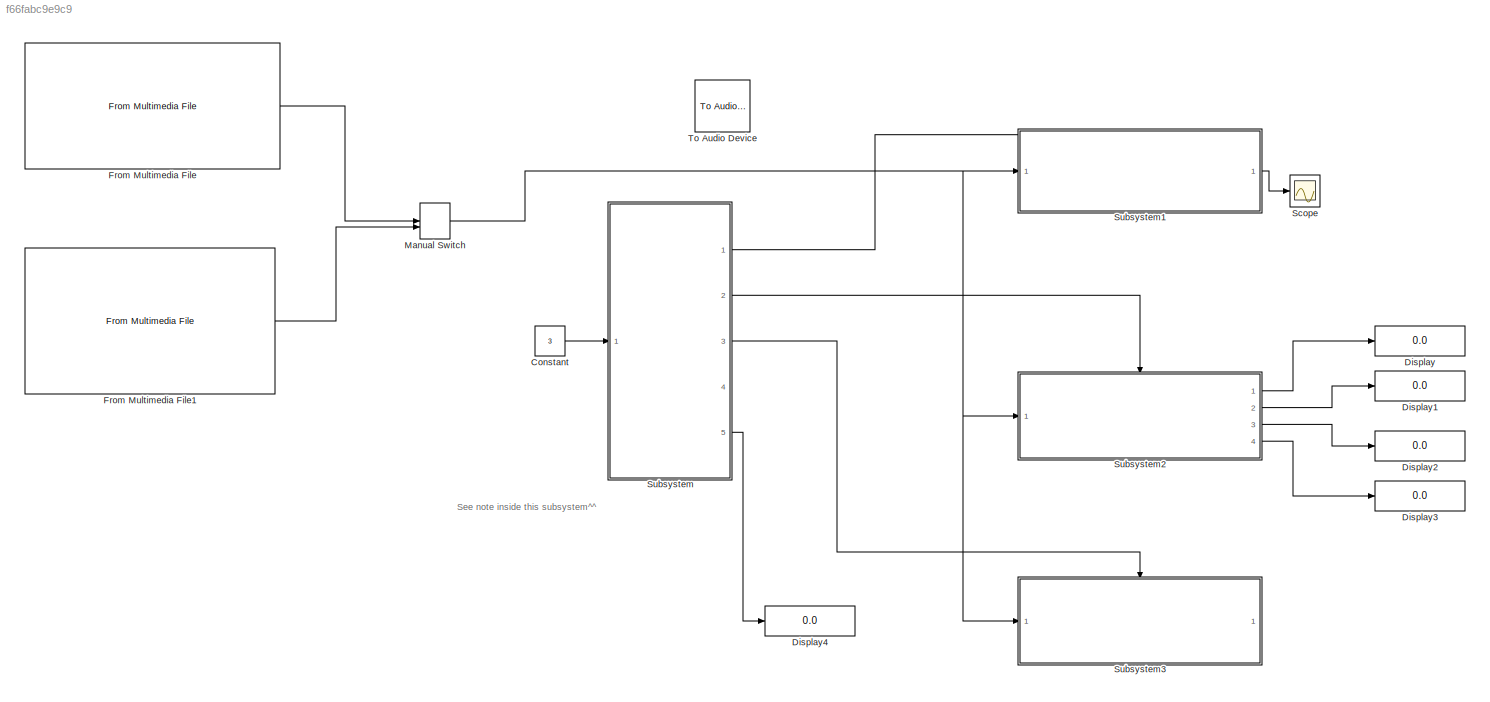
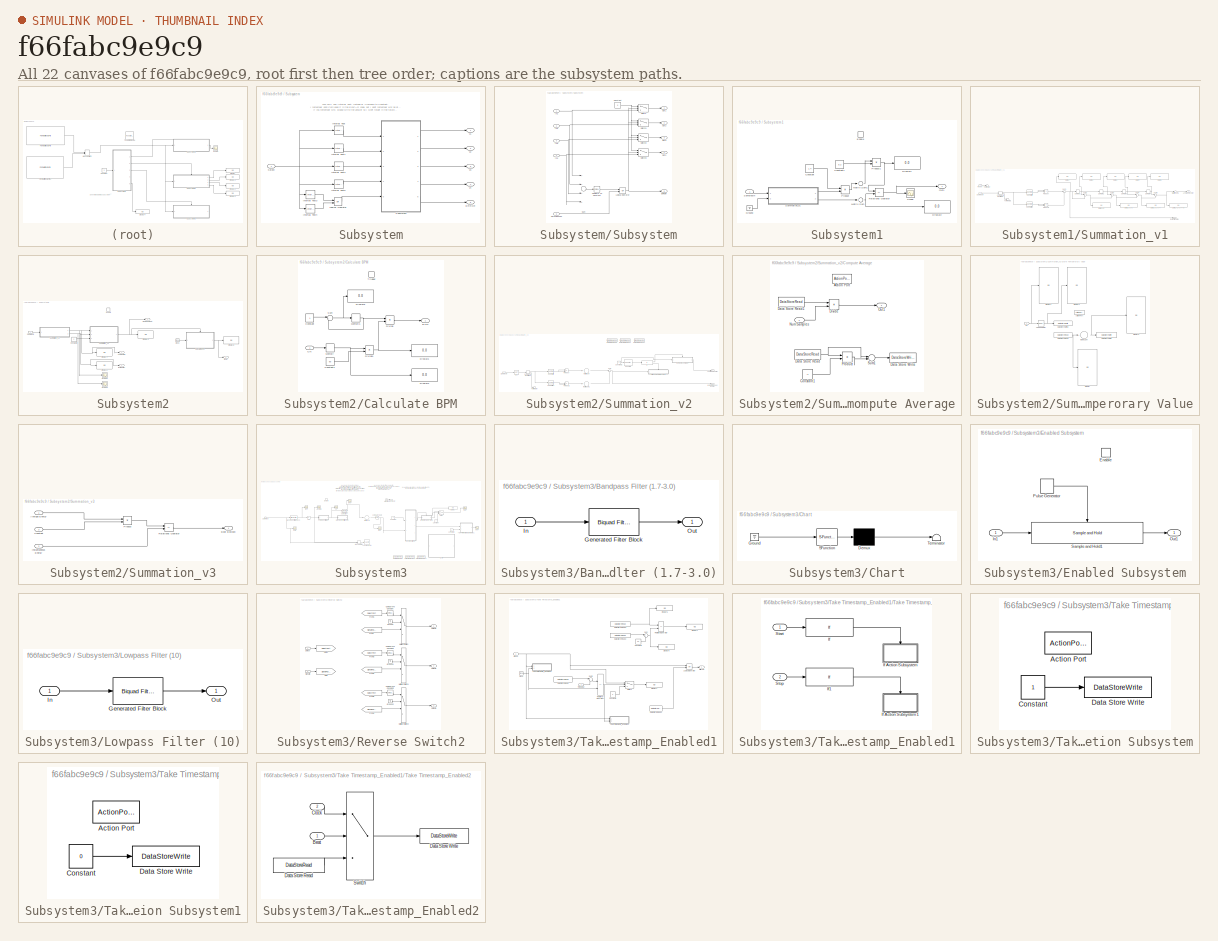
[diagram: thumbnail index - all 22 canvases of the model, root first then tree order]
MODEL slx_f66fabc9e9c9
KIND model
CONFIG AbsTol = auto
CONFIG FixedStep = auto
CONFIG MaxStep = auto
CONFIG MinStep = auto
CONFIG RelTol = 1e-3
CONFIG SampleTimeConstraint = Unconstrained
CONFIG Solver = ode45
CONFIG SolverMode = Auto
CONFIG SolverName = ode45
CONFIG StartTime = 0.0
CONFIG StopTime = inf
BLOCK [Constant] Constant
  Value = 3
BLOCK [Display] Display
  Decimation = 1
  Ports = [1]
BLOCK [Display] Display1
  Decimation = 1
  Ports = [1]
BLOCK [Display] Display2
  Decimation = 1
  Ports = [1]
BLOCK [Display] Display3
  Decimation = 1
  Ports = [1]
BLOCK [Display] Display4
  Decimation = 1
  Ports = [1]
BLOCK [Reference] From Multimedia File  REF=dspvision/From Multimedia File
  Ports = [0, 1]
  SourceBlock = dspvision/From Multimedia File
  SourceType = From Multimedia File
BLOCK [Reference] From Multimedia File1  REF=dspvision/From Multimedia File
  Ports = [0, 1]
  SourceBlock = dspvision/From Multimedia File
  SourceType = From Multimedia File
BLOCK [ManualSwitch] Manual Switch
  CurrentSetting = 0
BLOCK [Scope] Scope
  Ports = [1]
  ScopeSpecificationString = C++SS(StrPVP('Location','[809, 56, 1593, 851]'),StrPVP('Open','off'),MxPVP('AxesTitles',24,'struct(''axes1'',''%<SignalLabel>'')'),MxPVP('ScopeGraphics',28,'struct(''FigureColor'',''[0.5 0.5 0.5]'',''AxesColor'',''[0 0 0]'',''AxesTickColor'',''[1 1 1]'',''LineColors'',''[1 1 0;1 0 1;0 1 1;1 0 0;0 1 0;0 0 1]'',''LineStyles'',''-|-|-|-|-|-'',''LineWidths'',''[0.5 0.5 0.5 0.5 0.5 0.5]'',''MarkerStyle...<+224ch>  <repeated x3 — deduplicated; at blocks: Scope, BP1, Raw>
BLOCK [SubSystem] Subsystem
  Ports = [1, 5]
  RequestExecContextInheritance = off
  Variant = off
BLOCK [Outport] Subsystem/ERROR
  IconDisplay = Port number
  Port = 5
BLOCK [Reference] Subsystem/Interval Test  REF=simulink/Logic and Bit
Operations/Interval Test
  Ports = [1, 1]
  SourceBlock = simulink/Logic and Bit\nOperations/Interval Test
  SourceType = Interval Test
BLOCK [Reference] Subsystem/Interval Test1  REF=simulink/Logic and Bit
Operations/Interval Test
  Ports = [1, 1]
  SourceBlock = simulink/Logic and Bit\nOperations/Interval Test
  SourceType = Interval Test
BLOCK [Reference] Subsystem/Interval Test2  REF=simulink/Logic and Bit
Operations/Interval Test
  Ports = [1, 1]
  SourceBlock = simulink/Logic and Bit\nOperations/Interval Test
  SourceType = Interval Test
BLOCK [Reference] Subsystem/Interval Test3  REF=simulink/Logic and Bit
Operations/Interval Test
  Ports = [1, 1]
  SourceBlock = simulink/Logic and Bit\nOperations/Interval Test
  SourceType = Interval Test
BLOCK [Reference] Subsystem/Interval Test4  REF=simulink/Logic and Bit
Operations/Interval Test
  Ports = [1, 1]
  SourceBlock = simulink/Logic and Bit\nOperations/Interval Test
  SourceType = Interval Test
BLOCK [Reference] Subsystem/Interval Test5  REF=simulink/Logic and Bit
Operations/Interval Test
  Ports = [1, 1]
  SourceBlock = simulink/Logic and Bit\nOperations/Interval Test
  SourceType = Interval Test
BLOCK [Logic] Subsystem/Logical Operator
  AllPortsSameDT = off
  Operator = OR
  Ports = [2, 1]
BLOCK [Inport] Subsystem/Select
  IconDisplay = Port number
BLOCK [SubSystem] Subsystem/Subsystem
  Ports = [5, 5]
  RequestExecContextInheritance = off
  Variant = off
BLOCK [Reference] Subsystem/Subsystem/Compare To Constant  REF=simulink/Logic and Bit
Operations/Compare
To Constant
  Ports = [1, 1]
  SourceBlock = simulink/Logic and Bit\nOperations/Compare\nTo Constant
  SourceType = Compare To Constant
BLOCK [Constant] Subsystem/Subsystem/Constant
  Value = 0
BLOCK [Outport] Subsystem/Subsystem/ERROR
  IconDisplay = Port number
  Port = 5
BLOCK [Inport] Subsystem/Subsystem/In1
  IconDisplay = Port number
BLOCK [Inport] Subsystem/Subsystem/In2
  IconDisplay = Port number
  Port = 2
BLOCK [Inport] Subsystem/Subsystem/In3
  IconDisplay = Port number
  Port = 3
BLOCK [Inport] Subsystem/Subsystem/In4
  IconDisplay = Port number
  Port = 4
BLOCK [Logic] Subsystem/Subsystem/Logical Operator
  AllPortsSameDT = off
  Operator = OR
  OutDataTypeStr = boolean
  Ports = [2, 1]
BLOCK [Outport] Subsystem/Subsystem/Out1
  IconDisplay = Port number
BLOCK [Outport] Subsystem/Subsystem/Out2
  IconDisplay = Port number
  Port = 2
BLOCK [Outport] Subsystem/Subsystem/Out3
  IconDisplay = Port number
  Port = 3
BLOCK [Outport] Subsystem/Subsystem/Out4
  IconDisplay = Port number
  Port = 4
BLOCK [Inport] Subsystem/Subsystem/OutOfBounds
  IconDisplay = Port number
  Port = 5
BLOCK [Sum] Subsystem/Subsystem/Sum
  InputSameDT = off
  Inputs = ++++
  OutDataTypeStr = Inherit: Inherit via internal rule
  Ports = [4, 1]
  SaturateOnIntegerOverflow = off
BLOCK [Switch] Subsystem/Subsystem/Switch
  Criteria = u2 > Threshold
  InputSameDT = off
  SaturateOnIntegerOverflow = off
BLOCK [Switch] Subsystem/Subsystem/Switch1
  Criteria = u2 > Threshold
  InputSameDT = off
  SaturateOnIntegerOverflow = off
BLOCK [Switch] Subsystem/Subsystem/Switch2
  Criteria = u2 > Threshold
  InputSameDT = off
  SaturateOnIntegerOverflow = off
BLOCK [Switch] Subsystem/Subsystem/Switch3
  Criteria = u2 > Threshold
  InputSameDT = off
  SaturateOnIntegerOverflow = off
BLOCK [Outport] Subsystem/v1
  IconDisplay = Port number
BLOCK [Outport] Subsystem/v2
  IconDisplay = Port number
  Port = 2
BLOCK [Outport] Subsystem/v3
  IconDisplay = Port number
  Port = 3
BLOCK [Outport] Subsystem/v4
  IconDisplay = Port number
  Port = 4
BLOCK [SubSystem] Subsystem1
  Ports = [1, 1, 1]
  RequestExecContextInheritance = off
  Variant = off
BLOCK [Constant] Subsystem1/Constant
  Value = 1.4
BLOCK [Constant] Subsystem1/Constant1
  Value = 0.2
BLOCK [Display] Subsystem1/Display1
  Decimation = 1
  Ports = [1]
BLOCK [Display] Subsystem1/Display2
  Decimation = 1
  Ports = [1]
BLOCK [EnablePort] Subsystem1/Enable
  Ports = []
BLOCK [Ground] Subsystem1/Ground
BLOCK [Sum] Subsystem1/Matrix Sum
  InputSameDT = off
  Inputs = +
  OutDataTypeStr = Inherit: Inherit via internal rule
  Ports = [1, 1]
  SaturateOnIntegerOverflow = off
BLOCK [Sum] Subsystem1/Matrix Sum1
  InputSameDT = off
  Inputs = +
  OutDataTypeStr = Inherit: Inherit via internal rule
  Ports = [1, 1]
  SaturateOnIntegerOverflow = off
BLOCK [Outport] Subsystem1/Out1
  IconDisplay = Port number
BLOCK [Product] Subsystem1/Product
  InputSameDT = off
  OutDataTypeStr = Inherit: Inherit via internal rule
  Ports = [2, 1]
  RndMeth = Floor
  SaturateOnIntegerOverflow = off
BLOCK [Product] Subsystem1/Product1
  InputSameDT = off
  OutDataTypeStr = Inherit: Inherit via internal rule
  Ports = [2, 1]
  RndMeth = Floor
  SaturateOnIntegerOverflow = off
BLOCK [RelationalOperator] Subsystem1/Relational Operator
  InputSameDT = off
  Operator = <=
  OutDataTypeStr = boolean
  Ports = [2, 1]
BLOCK [Inport] Subsystem1/SamplesIn
  IconDisplay = Port number
BLOCK [Scope] Subsystem1/Scope
  Ports = [1]
  ScopeSpecificationString = C++SS(StrPVP('Location','[809, 56, 1593, 851]'),StrPVP('Open','off'),MxPVP('AxesTitles',24,'struct(''axes1'',''%<SignalLabel>'')'),MxPVP('ScopeGraphics',28,'struct(''FigureColor'',''[0.5 0.5 0.5]'',''AxesColor'',''[0 0 0]'',''AxesTickColor'',''[1 1 1]'',''LineColors'',''[1 1 0;1 0 1;0 1 1;1 0 0;0 1 0;0 0 1]'',''LineStyles'',''-|-|-|-|-|-'',''LineWidths'',''[0.5 0.5 0.5 0.5 0.5 0.5]'',''MarkerStyle...<+192ch>
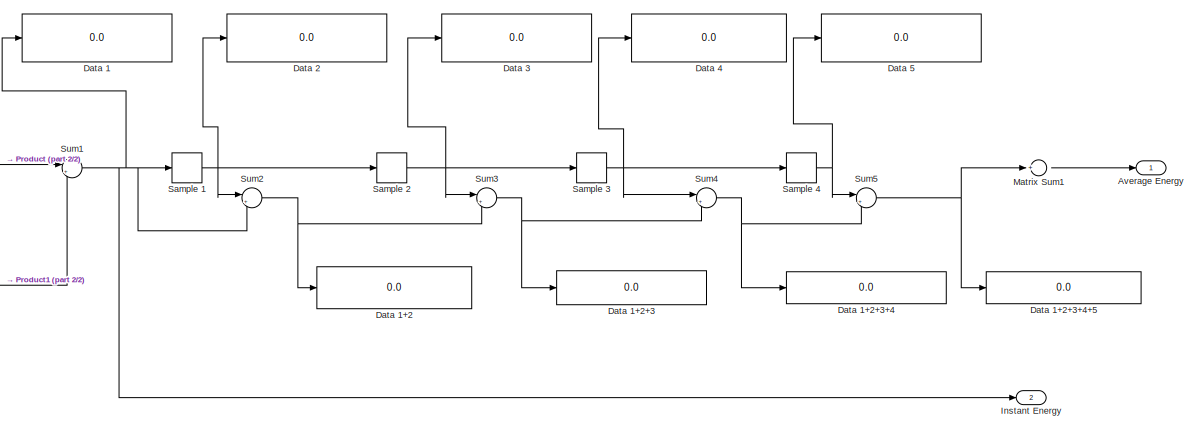
[diagram: Subsystem1/Summation_v1 - part 1/2, right side, full height]
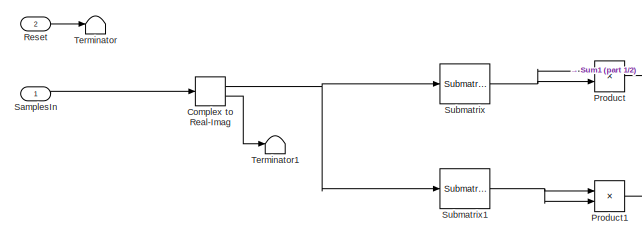
[diagram: Subsystem1/Summation_v1 - part 2/2, middle left region]
BLOCK [SubSystem] Subsystem1/Summation_v1
  Ports = [2, 2]
  RequestExecContextInheritance = off
  Variant = off
BLOCK [Outport] Subsystem1/Summation_v1/Average Energy
  IconDisplay = Port number
BLOCK [ComplexToRealImag] Subsystem1/Summation_v1/Complex to Real-Imag
  Ports = [1, 2]
BLOCK [Display] Subsystem1/Summation_v1/Data 1
  Decimation = 1
  Ports = [1]
BLOCK [Display] Subsystem1/Summation_v1/Data 1+2
  Decimation = 1
  Ports = [1]
BLOCK [Display] Subsystem1/Summation_v1/Data 1+2+3
  Decimation = 1
  Ports = [1]
BLOCK [Display] Subsystem1/Summation_v1/Data 1+2+3+4
  Decimation = 1
  Ports = [1]
BLOCK [Display] Subsystem1/Summation_v1/Data 1+2+3+4+5
  Decimation = 1
  Ports = [1]
BLOCK [Display] Subsystem1/Summation_v1/Data 2
  Decimation = 1
  Ports = [1]
BLOCK [Display] Subsystem1/Summation_v1/Data 3
  Decimation = 1
  Ports = [1]
BLOCK [Display] Subsystem1/Summation_v1/Data 4
  Decimation = 1
  Ports = [1]
BLOCK [Display] Subsystem1/Summation_v1/Data 5
  Decimation = 1
  Ports = [1]
BLOCK [Outport] Subsystem1/Summation_v1/Instant Energy
  IconDisplay = Port number
  Port = 2
BLOCK [Sum] Subsystem1/Summation_v1/Matrix Sum1
  InputSameDT = off
  Inputs = +
  OutDataTypeStr = Inherit: Inherit via internal rule
  Ports = [1, 1]
  SaturateOnIntegerOverflow = off
BLOCK [Product] Subsystem1/Summation_v1/Product
  InputSameDT = off
  OutDataTypeStr = Inherit: Inherit via internal rule
  Ports = [2, 1]
  RndMeth = Floor
  SaturateOnIntegerOverflow = off
BLOCK [Product] Subsystem1/Summation_v1/Product1
  InputSameDT = off
  OutDataTypeStr = Inherit: Inherit via internal rule
  Ports = [2, 1]
  RndMeth = Floor
  SaturateOnIntegerOverflow = off
BLOCK [Inport] Subsystem1/Summation_v1/Reset
  IconDisplay = Port number
  Port = 2
BLOCK [Memory] Subsystem1/Summation_v1/Sample 1
BLOCK [Memory] Subsystem1/Summation_v1/Sample 2
BLOCK [Memory] Subsystem1/Summation_v1/Sample 3
BLOCK [Memory] Subsystem1/Summation_v1/Sample 4
BLOCK [Inport] Subsystem1/Summation_v1/SamplesIn
  IconDisplay = Port number
BLOCK [Reference] Subsystem1/Summation_v1/Submatrix  REF=dspmtrx3/Submatrix
  Ports = [1, 1]
  SourceBlock = dspmtrx3/Submatrix
  SourceType = Submatrix
BLOCK [Reference] Subsystem1/Summation_v1/Submatrix1  REF=dspmtrx3/Submatrix
  Ports = [1, 1]
  SourceBlock = dspmtrx3/Submatrix
  SourceType = Submatrix
BLOCK [Sum] Subsystem1/Summation_v1/Sum1
  IconShape = round
  InputSameDT = off
  Inputs = |++
  OutDataTypeStr = Inherit: Inherit via internal rule
  Ports = [2, 1]
  SaturateOnIntegerOverflow = off
BLOCK [Sum] Subsystem1/Summation_v1/Sum2
  IconShape = round
  InputSameDT = off
  Inputs = |++
  OutDataTypeStr = Inherit: Inherit via internal rule
  Ports = [2, 1]
  SaturateOnIntegerOverflow = off
BLOCK [Sum] Subsystem1/Summation_v1/Sum3
  IconShape = round
  InputSameDT = off
  Inputs = |++
  OutDataTypeStr = Inherit: Inherit via internal rule
  Ports = [2, 1]
  SaturateOnIntegerOverflow = off
BLOCK [Sum] Subsystem1/Summation_v1/Sum4
  IconShape = round
  InputSameDT = off
  Inputs = |++
  OutDataTypeStr = Inherit: Inherit via internal rule
  Ports = [2, 1]
  SaturateOnIntegerOverflow = off
BLOCK [Sum] Subsystem1/Summation_v1/Sum5
  IconShape = round
  InputSameDT = off
  Inputs = |++
  OutDataTypeStr = Inherit: Inherit via internal rule
  Ports = [2, 1]
  SaturateOnIntegerOverflow = off
BLOCK [Terminator] Subsystem1/Summation_v1/Terminator
BLOCK [Terminator] Subsystem1/Summation_v1/Terminator1
BLOCK [SubSystem] Subsystem2
  Ports = [1, 4, 1]
  RequestExecContextInheritance = off
  Variant = off
BLOCK [Outport] Subsystem2/AvgEnergy
  IconDisplay = Port number
BLOCK [Outport] Subsystem2/BPM
  IconDisplay = Port number
  Port = 4
BLOCK [Outport] Subsystem2/BooleanBeat
  IconDisplay = Port number
  Port = 3
BLOCK [SubSystem] Subsystem2/Calculate BPM
  Ports = [1, 1, 0, 1]
  RequestExecContextInheritance = off
  Variant = off
BLOCK [Outport] Subsystem2/Calculate BPM/BPM
  IconDisplay = Port number
BLOCK [Inport] Subsystem2/Calculate BPM/Clk
  IconDisplay = Port number
BLOCK [Constant] Subsystem2/Calculate BPM/Constant
BLOCK [Constant] Subsystem2/Calculate BPM/Constant1
  Value = 60
BLOCK [Display] Subsystem2/Calculate BPM/Display1
  Decimation = 1
  Ports = [1]
BLOCK [Display] Subsystem2/Calculate BPM/Display2
  Decimation = 1
  Ports = [1]
BLOCK [Display] Subsystem2/Calculate BPM/Display6
  Decimation = 1
  Ports = [1]
BLOCK [Product] Subsystem2/Calculate BPM/Divide
  InputSameDT = off
  Inputs = */
  OutDataTypeStr = Inherit: Inherit via internal rule
  Ports = [2, 1]
  RndMeth = Floor
  SaturateOnIntegerOverflow = off
BLOCK [Product] Subsystem2/Calculate BPM/Divide1
  InputSameDT = off
  Inputs = */
  OutDataTypeStr = Inherit: Inherit via internal rule
  Ports = [2, 1]
  RndMeth = Floor
  SaturateOnIntegerOverflow = off
BLOCK [Memory] Subsystem2/Calculate BPM/Memory
  InheritSampleTime = on
BLOCK [Memory] Subsystem2/Calculate BPM/Memory1
  InheritSampleTime = on
BLOCK [Sum] Subsystem2/Calculate BPM/Sum
  IconShape = round
  InputSameDT = off
  Inputs = |++
  OutDataTypeStr = Inherit: Inherit via internal rule
  Ports = [2, 1]
  SaturateOnIntegerOverflow = off
BLOCK [TriggerPort] Subsystem2/Calculate BPM/Trigger
  PortDimensions = 1
  Ports = []
  StatesWhenEnabling = held
BLOCK [Clock] Subsystem2/Clock
BLOCK [Constant] Subsystem2/Constant2
  Value = 2
BLOCK [Display] Subsystem2/Display3
  Decimation = 1
  Ports = [1]
BLOCK [Display] Subsystem2/Display4
  Decimation = 1
  Ports = [1]
BLOCK [Display] Subsystem2/Display5
  Decimation = 1
  Ports = [1]
BLOCK [Display] Subsystem2/Display6
  Decimation = 1
  Ports = [1]
BLOCK [EnablePort] Subsystem2/Enable
  Ports = []
BLOCK [Outport] Subsystem2/InstEnergy
  IconDisplay = Port number
  Port = 2
BLOCK [Inport] Subsystem2/SamplesIn
  IconDisplay = Port number
BLOCK [Scope] Subsystem2/Scope2
  Ports = [1]
  ScopeSpecificationString = C++SS(StrPVP('Location','[81, 327, 664, 566]'),StrPVP('Open','off'),MxPVP('AxesTitles',24,'struct(''axes1'',''%<SignalLabel>'')'),MxPVP('ScopeGraphics',28,'struct(''FigureColor'',''[0.5 0.5 0.5]'',''AxesColor'',''[0 0 0]'',''AxesTickColor'',''[1 1 1]'',''LineColors'',''[1 1 0;1 0 1;0 1 1;1 0 0;0 1 0;0 0 1]'',''LineStyles'',''-|-|-|-|-|-'',''LineWidths'',''[0.5 0.5 0.5 0.5 0.5 0.5]'',''MarkerStyles...<+266ch>
BLOCK [Scope] Subsystem2/Scope3
  Ports = [1]
  ScopeSpecificationString = C++SS(StrPVP('Location','[68, 68, 637, 307]'),StrPVP('Open','off'),MxPVP('AxesTitles',24,'struct(''axes1'',''%<SignalLabel>'')'),MxPVP('ScopeGraphics',28,'struct(''FigureColor'',''[0.5 0.5 0.5]'',''AxesColor'',''[0 0 0]'',''AxesTickColor'',''[1 1 1]'',''LineColors'',''[1 1 0;1 0 1;0 1 1;1 0 0;0 1 0;0 0 1]'',''LineStyles'',''-|-|-|-|-|-'',''LineWidths'',''[0.5 0.5 0.5 0.5 0.5 0.5]'',''MarkerStyles'...<+265ch>
BLOCK [SubSystem] Subsystem2/Summation_v2
  Ports = [1, 2]
  RequestExecContextInheritance = off
  Variant = off
BLOCK [Outport] Subsystem2/Summation_v2/Average Energy
  IconDisplay = Port number
BLOCK [ComplexToRealImag] Subsystem2/Summation_v2/Complex to Real-Imag
  Ports = [1, 2]
BLOCK [SubSystem] Subsystem2/Summation_v2/Compute Average
  Ports = [1, 1, 0, 0, 0, 0, 0, 1]
  RequestExecContextInheritance = off
  TreatAsAtomicUnit = on
  Variant = off
BLOCK [ActionPort] Subsystem2/Summation_v2/Compute Average/Action Port
  ActionType = then
BLOCK [Constant] Subsystem2/Summation_v2/Compute Average/Constant1
  Commented = on
  Value = -1
BLOCK [DataStoreRead] Subsystem2/Summation_v2/Compute Average/Data Store Read
  Commented = on
  DataStoreName = RunningSum
  Ports = [0, 1]
BLOCK [DataStoreRead] Subsystem2/Summation_v2/Compute Average/Data Store Read1
  DataStoreName = RunningSum
  Ports = [0, 1]
BLOCK [DataStoreWrite] Subsystem2/Summation_v2/Compute Average/Data Store Write
  Commented = on
  DataStoreName = RunningSum
  Ports = [1]
BLOCK [Product] Subsystem2/Summation_v2/Compute Average/Divide
  InputSameDT = off
  Inputs = */
  OutDataTypeStr = Inherit: Inherit via internal rule
  Ports = [2, 1]
  RndMeth = Floor
  SaturateOnIntegerOverflow = off
BLOCK [Inport] Subsystem2/Summation_v2/Compute Average/Num Samples
  IconDisplay = Port number
BLOCK [Outport] Subsystem2/Summation_v2/Compute Average/Out1
  IconDisplay = Port number
BLOCK [Product] Subsystem2/Summation_v2/Compute Average/Product
  Commented = on
  InputSameDT = off
  OutDataTypeStr = Inherit: Inherit via internal rule
  Ports = [2, 1]
  RndMeth = Floor
  SaturateOnIntegerOverflow = off
BLOCK [Sum] Subsystem2/Summation_v2/Compute Average/Sum1
  Commented = on
  IconShape = round
  InputSameDT = off
  Inputs = |++
  OutDataTypeStr = Inherit: Inherit via internal rule
  Ports = [2, 1]
  SaturateOnIntegerOverflow = off
BLOCK [Constant] Subsystem2/Summation_v2/Constant2
  OutDataTypeStr = uint8
  Value = 6
BLOCK [Reference] Subsystem2/Summation_v2/Counter1  REF=dspswit3/Counter
  Ports = [1, 1]
  SourceBlock = dspswit3/Counter
  SourceType = Counter
BLOCK [DataStoreMemory] Subsystem2/Summation_v2/Data Store Memory
  DataStoreName = DataArray
  InitialValue = [0 0 0 0 0 0]
  ReadBeforeWriteMsg = warning
  WriteAfterReadMsg = warning
  WriteAfterWriteMsg = warning
BLOCK [DataStoreMemory] Subsystem2/Summation_v2/Data Store Memory1
  DataStoreName = RunningSum
  ReadBeforeWriteMsg = warning
  WriteAfterReadMsg = warning
  WriteAfterWriteMsg = warning
BLOCK [DataStoreMemory] Subsystem2/Summation_v2/Data Store Memory2
  DataStoreName = DataArray3
  InitialValue = [0 0 0 0 0 0 0 0 0 0 0 0 0 0 0 0 0 0 0 0 0 0 0 0 0 0 0 0 0 0 0 0 0 0 0 0 0 0 0 0 0 0 0 0 0 0 0 0 0 0 0 0 0 0 0 0 0 0 0 0 0 0 0 0 0 0 0 0 0 0 0 0 0 0 0 0 0 0 0 0 0 0 0 0 0 0 0 0 0 0 0 0 0 0 0 0 0 0 0 0 0 0 0 0 0 0 0 0 0 0 0 0 0 0 0 0 0 0 0 0 0 0 0 0 0 0 0 0 0 0 0 0 0 0 0 0 0 0 0 0 0 0 0 0 0 0 0 0 0 0 0 0 0 0 0 0 0 0 0 0 0 0 0 0 0 0 0 0 0 0 0 0 0 0 0 0 0 0 0 0 0 0 0 0 0 0 0 0 0 0 0 0 0 0 0 0 0 0 0 0...<+1649ch>
  ReadBeforeWriteMsg = warning
  WriteAfterReadMsg = warning
  WriteAfterWriteMsg = warning
BLOCK [Reference] Subsystem2/Summation_v2/FFT  REF=dspxfrm3/FFT
  Ports = [1, 1]
  SourceBlock = dspxfrm3/FFT
  SourceType = FFT
BLOCK [If] Subsystem2/Summation_v2/If
  IfExpression = u1 == 6
  Ports = [1, 2]
BLOCK [Outport] Subsystem2/Summation_v2/Instantaneous Energy
  IconDisplay = Port number
  Port = 2
BLOCK [Sum] Subsystem2/Summation_v2/Matrix Sum
  InputSameDT = off
  Inputs = +
  OutDataTypeStr = Inherit: Inherit via internal rule
  Ports = [1, 1]
  SaturateOnIntegerOverflow = off
BLOCK [Sum] Subsystem2/Summation_v2/Matrix Sum1
  InputSameDT = off
  Inputs = +
  OutDataTypeStr = Inherit: Inherit via internal rule
  Ports = [1, 1]
  SaturateOnIntegerOverflow = off
BLOCK [Product] Subsystem2/Summation_v2/Product
  InputSameDT = off
  OutDataTypeStr = Inherit: Inherit via internal rule
  Ports = [2, 1]
  RndMeth = Floor
  SaturateOnIntegerOverflow = off
BLOCK [Product] Subsystem2/Summation_v2/Product1
  InputSameDT = off
  OutDataTypeStr = Inherit: Inherit via internal rule
  Ports = [2, 1]
  RndMeth = Floor
  SaturateOnIntegerOverflow = off
BLOCK [Inport] Subsystem2/Summation_v2/SamplesIn
  IconDisplay = Port number
BLOCK [SubSystem] Subsystem2/Summation_v2/Store Temperorary Value
  Ports = [1, 0, 0, 0, 0, 0, 0, 1]
  RequestExecContextInheritance = off
  TreatAsAtomicUnit = on
  Variant = off
BLOCK [ActionPort] Subsystem2/Summation_v2/Store Temperorary Value/Action Port
  ActionType = else
BLOCK [DataStoreRead] Subsystem2/Summation_v2/Store Temperorary Value/Data Store Read
  DataStoreName = DataArray
  Ports = [0, 1]
BLOCK [DataStoreWrite] Subsystem2/Summation_v2/Store Temperorary Value/Data Store Write
  DataStoreName = RunningSum
  DialogController = Simulink.DDGSource
  Ports = [1]
BLOCK [DataStoreWrite] Subsystem2/Summation_v2/Store Temperorary Value/Data Store Write2
  DataStoreName = DataArray
  DialogController = Simulink.DDGSource
  Ports = [1]
BLOCK [Display] Subsystem2/Summation_v2/Store Temperorary Value/Display
  Decimation = 1
  Ports = [1]
BLOCK [Display] Subsystem2/Summation_v2/Store Temperorary Value/Display1
  Decimation = 1
  Ports = [1]
BLOCK [Display] Subsystem2/Summation_v2/Store Temperorary Value/Display2
  Decimation = 1
  Ports = [1]
BLOCK [Display] Subsystem2/Summation_v2/Store Temperorary Value/Display3
  Decimation = 1
  Ports = [1]
BLOCK [Inport] Subsystem2/Summation_v2/Store Temperorary Value/In1
  IconDisplay = Port number
BLOCK [Sum] Subsystem2/Summation_v2/Store Temperorary Value/Matrix Sum
  InputSameDT = off
  Inputs = +
  OutDataTypeStr = Inherit: Inherit via internal rule
  Ports = [1, 1]
  SaturateOnIntegerOverflow = off
BLOCK [Reference] Subsystem2/Summation_v2/Store Temperorary Value/Tapped Delay  REF=simulink/Discrete/Tapped Delay
  Ports = [1, 1]
  SourceBlock = simulink/Discrete/Tapped Delay
  SourceType = Tapped Delay Line
BLOCK [Reference] Subsystem2/Summation_v2/Submatrix  REF=dspmtrx3/Submatrix
  Ports = [1, 1]
  SourceBlock = dspmtrx3/Submatrix
  SourceType = Submatrix
BLOCK [Reference] Subsystem2/Summation_v2/Submatrix1  REF=dspmtrx3/Submatrix
  Ports = [1, 1]
  SourceBlock = dspmtrx3/Submatrix
  SourceType = Submatrix
BLOCK [Sum] Subsystem2/Summation_v2/Sum
  IconShape = round
  InputSameDT = off
  Inputs = |++
  OutDataTypeStr = Inherit: Inherit via internal rule
  Ports = [2, 1]
  SaturateOnIntegerOverflow = off
BLOCK [Terminator] Subsystem2/Summation_v2/Terminator
BLOCK [SubSystem] Subsystem2/Summation_v3
  Ports = [3, 1]
  RequestExecContextInheritance = off
  Variant = off
BLOCK [Inport] Subsystem2/Summation_v3/Average Energy
  IconDisplay = Port number
BLOCK [Outport] Subsystem2/Summation_v3/Beat Boolean
  IconDisplay = Port number
BLOCK [Inport] Subsystem2/Summation_v3/Constant
  IconDisplay = Port number
  Port = 3
BLOCK [Inport] Subsystem2/Summation_v3/Instantaneous Energy
  IconDisplay = Port number
  Port = 2
BLOCK [Product] Subsystem2/Summation_v3/Product
  InputSameDT = off
  OutDataTypeStr = Inherit: Inherit via internal rule
  Ports = [2, 1]
  RndMeth = Floor
  SaturateOnIntegerOverflow = off
BLOCK [RelationalOperator] Subsystem2/Summation_v3/Relational Operator
  InputSameDT = off
  Operator = <=
  OutDataTypeStr = boolean
  Ports = [2, 1]
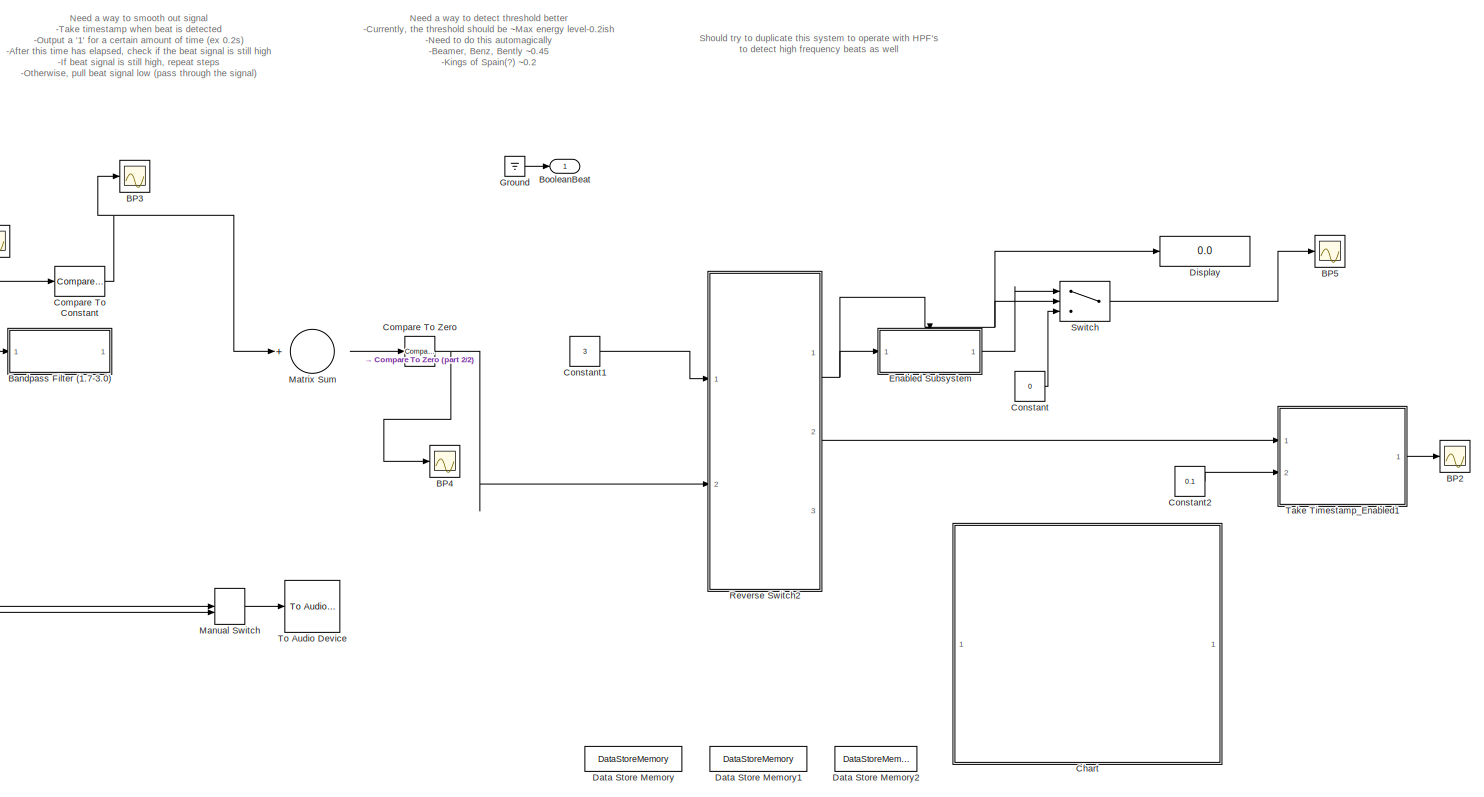
[diagram: Subsystem3 - part 1/2, right side, full height]
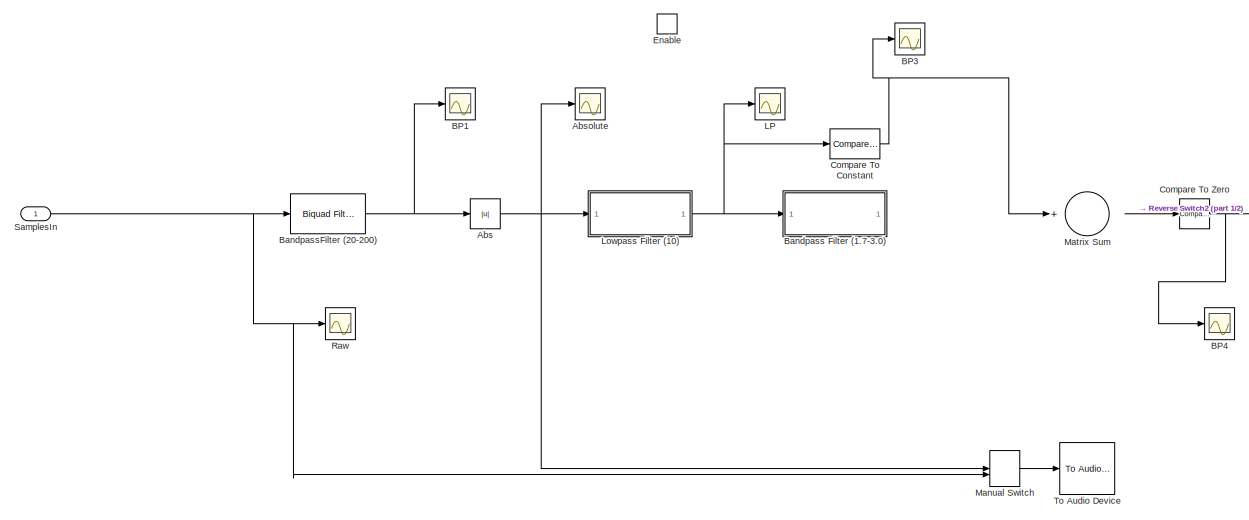
[diagram: Subsystem3 - part 2/2, middle left region]
BLOCK [SubSystem] Subsystem3
  Ports = [1, 1, 1]
  RequestExecContextInheritance = off
  Variant = off
BLOCK [Abs] Subsystem3/Abs
  SaturateOnIntegerOverflow = off
BLOCK [Scope] Subsystem3/Absolute
  Ports = [1]
  ScopeSpecificationString = C++SS(StrPVP('Location','[809, 56, 1593, 851]'),StrPVP('Open','off'),StrPVP('ZoomMode','yonly'),MxPVP('AxesTitles',24,'struct(''axes1'',''%<SignalLabel>'')'),MxPVP('ScopeGraphics',28,'struct(''FigureColor'',''[0.5 0.5 0.5]'',''AxesColor'',''[0 0 0]'',''AxesTickColor'',''[1 1 1]'',''LineColors'',''[1 1 0;1 0 1;0 1 1;1 0 0;0 1 0;0 0 1]'',''LineStyles'',''-|-|-|-|-|-'',''LineWidths'',''[0.5 0.5 0.5 0...<+251ch>
BLOCK [Scope] Subsystem3/BP1
  Ports = [1]
BLOCK [Scope] Subsystem3/BP2
  Ports = [1]
  ScopeSpecificationString = Simulink.scopes.TimeScopeBlockCfg('CurrentConfiguration', extmgr.ConfigurationSet(extmgr.Configuration('Core','General UI',true),extmgr.Configuration('Core','Source UI',true),extmgr.Configuration('Sources','WiredSimulink',true,'DataLoggingVariableName','ScopeData8','DataLoggingSaveFormat','Array','DataLoggingDecimation','1','DataLoggingDecimateData',true),extmgr.Configuration('Visuals','Time Domai...<+1673ch>
BLOCK [Scope] Subsystem3/BP3
  Ports = [1]
  ScopeSpecificationString = C++SS(StrPVP('Location','[5, 48, 1601, 859]'),StrPVP('Open','off'),StrPVP('TickLabels','on'),MxPVP('AxesTitles',24,'struct(''axes1'',''%<SignalLabel>'')'),MxPVP('ScopeGraphics',28,'struct(''FigureColor'',''[0.501960784313725 0.501960784313725 0.501960784313725]'',''AxesColor'',''[0 0 0]'',''AxesTickColor'',''[1 1 1]'',''LineColors'',''[1 1 0;1 0 1;0 1 1;1 0 0;0 1 0;0 0 1]'',''LineStyles'',''-|-|-|...<+291ch>
BLOCK [Scope] Subsystem3/BP4
  Ports = [1]
  ScopeSpecificationString = C++SS(StrPVP('Location','[809, 56, 1593, 851]'),StrPVP('Open','off'),StrPVP('TickLabels','on'),StrPVP('ZoomMode','xonly'),MxPVP('AxesTitles',24,'struct(''axes1'',''%<SignalLabel>'')'),MxPVP('ScopeGraphics',28,'struct(''FigureColor'',''[0.501960784313725 0.501960784313725 0.501960784313725]'',''AxesColor'',''[0 0 0]'',''AxesTickColor'',''[1 1 1]'',''LineColors'',''[1 1 0;1 0 1;0 1 1;1 0 0;0 1 0;0 0...<+321ch>
BLOCK [Scope] Subsystem3/BP5
  Ports = [1]
  ScopeSpecificationString = C++SS(StrPVP('Location','[809, 56, 1593, 851]'),StrPVP('Open','off'),StrPVP('TickLabels','on'),StrPVP('ZoomMode','xonly'),MxPVP('AxesTitles',24,'struct(''axes1'',''%<SignalLabel>'')'),MxPVP('ScopeGraphics',28,'struct(''FigureColor'',''[0.501960784313725 0.501960784313725 0.501960784313725]'',''AxesColor'',''[0 0 0]'',''AxesTickColor'',''[1 1 1]'',''LineColors'',''[1 1 0;1 0 1;0 1 1;1 0 0;0 1 0;0 0...<+321ch>
BLOCK [SubSystem] Subsystem3/Bandpass Filter (1.7-3.0)
  Commented = through
  CopyFcn = fdesignblkfcn(gcbh, {'CopyFcn'});
  DialogController = fdesignblkfcn
  InitFcn = fdesignblkfcn(gcbh, {'InitFcn'});
  Ports = [1, 1]
  RequestExecContextInheritance = off
  UserDataPersistent = on
  Variant = off
BLOCK [Reference] Subsystem3/Bandpass Filter (1.7-3.0)/Generated Filter Block  REF=dsparch4/Biquad Filter
  Ports = [1, 1]
  SourceBlock = dsparch4/Biquad Filter
  SourceType = Biquad Filter
  Tag = BlockMethodSubSystem
  UserDataPersistent = on
BLOCK [Inport] Subsystem3/Bandpass Filter (1.7-3.0)/In
  IconDisplay = Port number
BLOCK [Outport] Subsystem3/Bandpass Filter (1.7-3.0)/Out
  IconDisplay = Port number
BLOCK [Reference] Subsystem3/BandpassFilter (20-200)  REF=dsparch4/Biquad Filter
  Ports = [1, 1]
  SourceBlock = dsparch4/Biquad Filter
  SourceType = Biquad Filter
  Tag = BlockMethodSubSystem
  UserDataPersistent = on
BLOCK [Outport] Subsystem3/BooleanBeat
  IconDisplay = Port number
BLOCK [SubSystem] Subsystem3/Chart
  ErrorFcn = Stateflow.Translate.translate
  PermitHierarchicalResolution = ExplicitOnly
  Ports = []
  RequestExecContextInheritance = off
  SFBlockType = Chart
  TreatAsAtomicUnit = on
  Variant = off
BLOCK [Demux] Subsystem3/Chart/ Demux 
  Outputs = 1
  Ports = [1, 1]
BLOCK [Ground] Subsystem3/Chart/ Ground 
BLOCK [S-Function] Subsystem3/Chart/ SFunction 
  EnableBusSupport = on
  FunctionName = sf_sfun
  PortCounts = [1 1]
  Ports = [1, 1]
  SFunctionDeploymentMode = off
  Tag = Stateflow S-Function BeatDetection 3
BLOCK [Terminator] Subsystem3/Chart/ Terminator 
BLOCK [Reference] Subsystem3/Compare To Constant  REF=simulink/Logic and Bit
Operations/Compare
To Constant
  Ports = [1, 1]
  SourceBlock = simulink/Logic and Bit\nOperations/Compare\nTo Constant
  SourceType = Compare To Constant
BLOCK [Reference] Subsystem3/Compare To Zero  REF=simulink/Logic and Bit
Operations/Compare
To Zero
  Ports = [1, 1]
  SourceBlock = simulink/Logic and Bit\nOperations/Compare\nTo Zero
  SourceType = Compare To Zero
BLOCK [Constant] Subsystem3/Constant
  Value = 0
BLOCK [Constant] Subsystem3/Constant1
  Value = 3
BLOCK [Constant] Subsystem3/Constant2
  Value = 0.1
BLOCK [DataStoreMemory] Subsystem3/Data Store Memory
  DataStoreName = TimeStamp_Ref
  ReadBeforeWriteMsg = warning
  WriteAfterReadMsg = warning
  WriteAfterWriteMsg = warning
BLOCK [DataStoreMemory] Subsystem3/Data Store Memory1
  DataStoreName = TimeStamp_Beat
  ReadBeforeWriteMsg = warning
  WriteAfterReadMsg = warning
  WriteAfterWriteMsg = warning
BLOCK [DataStoreMemory] Subsystem3/Data Store Memory2
  DataStoreName = FakeSignal
  ReadBeforeWriteMsg = warning
  WriteAfterReadMsg = warning
  WriteAfterWriteMsg = warning
BLOCK [Display] Subsystem3/Display
  Decimation = 1
  Ports = [1]
BLOCK [EnablePort] Subsystem3/Enable
  Ports = []
BLOCK [SubSystem] Subsystem3/Enabled Subsystem
  Ports = [1, 1, 1]
  RequestExecContextInheritance = off
  TreatAsAtomicUnit = on
  Variant = off
BLOCK [EnablePort] Subsystem3/Enabled Subsystem/Enable
  Ports = []
BLOCK [Inport] Subsystem3/Enabled Subsystem/In1
  IconDisplay = Port number
BLOCK [Outport] Subsystem3/Enabled Subsystem/Out1
  IconDisplay = Port number
BLOCK [DiscretePulseGenerator] Subsystem3/Enabled Subsystem/Pulse Generator
  Period = 0.4
  Ports = [0, 1]
  PulseType = Time based
  PulseWidth = 50
BLOCK [Reference] Subsystem3/Enabled Subsystem/Sample and Hold1  REF=dspsigops/Sample
and Hold
  Ports = [1, 1, 0, 1]
  SourceBlock = dspsigops/Sample\nand Hold
  SourceType = Sample and Hold
BLOCK [Ground] Subsystem3/Ground
BLOCK [Scope] Subsystem3/LP
  Ports = [1]
  ScopeSpecificationString = C++SS(StrPVP('Location','[809, 56, 1593, 851]'),StrPVP('Open','off'),StrPVP('ZoomMode','xonly'),MxPVP('AxesTitles',24,'struct(''axes1'',''%<SignalLabel>'')'),MxPVP('ScopeGraphics',28,'struct(''FigureColor'',''[0.5 0.5 0.5]'',''AxesColor'',''[0 0 0]'',''AxesTickColor'',''[1 1 1]'',''LineColors'',''[1 1 0;1 0 1;0 1 1;1 0 0;0 1 0;0 0 1]'',''LineStyles'',''-|-|-|-|-|-'',''LineWidths'',''[0.5 0.5 0.5 0...<+251ch>
BLOCK [SubSystem] Subsystem3/Lowpass Filter (10)
  CopyFcn = fdesignblkfcn(gcbh, {'CopyFcn'});
  DialogController = fdesignblkfcn
  InitFcn = fdesignblkfcn(gcbh, {'InitFcn'});
  Ports = [1, 1]
  RequestExecContextInheritance = off
  UserDataPersistent = on
  Variant = off
BLOCK [Reference] Subsystem3/Lowpass Filter (10)/Generated Filter Block  REF=dsparch4/Biquad Filter
  Ports = [1, 1]
  SourceBlock = dsparch4/Biquad Filter
  SourceType = Biquad Filter
  Tag = BlockMethodSubSystem
  UserDataPersistent = on
BLOCK [Inport] Subsystem3/Lowpass Filter (10)/In
  IconDisplay = Port number
BLOCK [Outport] Subsystem3/Lowpass Filter (10)/Out
  IconDisplay = Port number
BLOCK [ManualSwitch] Subsystem3/Manual Switch
  CurrentSetting = 0
BLOCK [Sum] Subsystem3/Matrix Sum
  InputSameDT = off
  Inputs = +
  OutDataTypeStr = Inherit: Inherit via internal rule
  Ports = [1, 1]
  SaturateOnIntegerOverflow = off
BLOCK [Scope] Subsystem3/Raw
  Ports = [1]
BLOCK [SubSystem] Subsystem3/Reverse Switch2
  Ports = [2, 3]
  RequestExecContextInheritance = off
  Variant = off
BLOCK [Reference] Subsystem3/Reverse Switch2/Compare To Constant  REF=simulink/Logic and Bit
Operations/Compare
To Constant
  Ports = [1, 1]
  SourceBlock = simulink/Logic and Bit\nOperations/Compare\nTo Constant
  SourceType = Compare To Constant
BLOCK [Reference] Subsystem3/Reverse Switch2/Compare To Constant1  REF=simulink/Logic and Bit
Operations/Compare
To Constant
  Ports = [1, 1]
  SourceBlock = simulink/Logic and Bit\nOperations/Compare\nTo Constant
  SourceType = Compare To Constant
BLOCK [Reference] Subsystem3/Reverse Switch2/Compare To Constant2  REF=simulink/Logic and Bit
Operations/Compare
To Constant
  Ports = [1, 1]
  SourceBlock = simulink/Logic and Bit\nOperations/Compare\nTo Constant
  SourceType = Compare To Constant
BLOCK [From] Subsystem3/Reverse Switch2/From
  GotoTag = SignalPassthrough
BLOCK [From] Subsystem3/Reverse Switch2/From1
  GotoTag = SelectPort
BLOCK [From] Subsystem3/Reverse Switch2/From2
  GotoTag = SignalPassthrough
BLOCK [From] Subsystem3/Reverse Switch2/From3
  GotoTag = SelectPort
BLOCK [From] Subsystem3/Reverse Switch2/From4
  GotoTag = SignalPassthrough
BLOCK [From] Subsystem3/Reverse Switch2/From5
  GotoTag = SelectPort
BLOCK [Goto] Subsystem3/Reverse Switch2/Goto
  GotoTag = SignalPassthrough
BLOCK [Goto] Subsystem3/Reverse Switch2/Goto1
  GotoTag = SelectPort
BLOCK [Ground] Subsystem3/Reverse Switch2/Ground
BLOCK [Ground] Subsystem3/Reverse Switch2/Ground1
BLOCK [Ground] Subsystem3/Reverse Switch2/Ground2
BLOCK [MultiPortSwitch] Subsystem3/Reverse Switch2/Multiport Switch
  DataPortForDefault = Additional data port
  DataPortOrder = Zero-based contiguous
  InputSameDT = off
  Inputs = 2
  Ports = [4, 1]
  SaturateOnIntegerOverflow = off
BLOCK [MultiPortSwitch] Subsystem3/Reverse Switch2/Multiport Switch1
  DataPortForDefault = Additional data port
  DataPortOrder = Zero-based contiguous
  InputSameDT = off
  Inputs = 2
  Ports = [4, 1]
  SaturateOnIntegerOverflow = off
BLOCK [MultiPortSwitch] Subsystem3/Reverse Switch2/Multiport Switch2
  DataPortForDefault = Additional data port
  DataPortOrder = Zero-based contiguous
  InputSameDT = off
  Inputs = 2
  Ports = [4, 1]
  SaturateOnIntegerOverflow = off
BLOCK [Outport] Subsystem3/Reverse Switch2/Output 1
  IconDisplay = Port number
BLOCK [Outport] Subsystem3/Reverse Switch2/Output 2
  IconDisplay = Port number
  Port = 2
BLOCK [Outport] Subsystem3/Reverse Switch2/Output 3
  IconDisplay = Port number
  Port = 3
BLOCK [Inport] Subsystem3/Reverse Switch2/Select
  IconDisplay = Port number
BLOCK [Inport] Subsystem3/Reverse Switch2/Signal In
  IconDisplay = Port number
  Port = 2
BLOCK [Inport] Subsystem3/SamplesIn
  IconDisplay = Port number
BLOCK [Switch] Subsystem3/Switch
  Criteria = u2 > Threshold
  InputSameDT = off
  SaturateOnIntegerOverflow = off
BLOCK [SubSystem] Subsystem3/Take Timestamp_Enabled1
  Ports = [2, 1]
  RequestExecContextInheritance = off
  Variant = off
BLOCK [Clock] Subsystem3/Take Timestamp_Enabled1/Clock
BLOCK [Constant] Subsystem3/Take Timestamp_Enabled1/Constant4
  Commented = on
  Value = 0.2
BLOCK [Constant] Subsystem3/Take Timestamp_Enabled1/Constant5
  Value = 0
BLOCK [DataStoreRead] Subsystem3/Take Timestamp_Enabled1/Data Store Read
  DataStoreElements = TimeStamp_Beat
  DataStoreName = TimeStamp_Beat
  Ports = [0, 1]
BLOCK [DataStoreRead] Subsystem3/Take Timestamp_Enabled1/Data Store Read1
  DataStoreElements = FakeSignal
  DataStoreName = FakeSignal
  Ports = [0, 1]
BLOCK [DataStoreRead] Subsystem3/Take Timestamp_Enabled1/Data Store Read2
  Commented = on
  DataStoreElements = TimeStamp_Beat
  DataStoreName = TimeStamp_Beat
  Ports = [0, 1]
BLOCK [DataStoreRead] Subsystem3/Take Timestamp_Enabled1/Data Store Read3
  Commented = on
  DataStoreElements = TimeStamp_Ref
  DataStoreName = TimeStamp_Ref
  Ports = [0, 1]
BLOCK [Display] Subsystem3/Take Timestamp_Enabled1/Display1
  Decimation = 1
  Ports = [1]
BLOCK [Display] Subsystem3/Take Timestamp_Enabled1/Display4
  Commented = on
  Decimation = 1
  Ports = [1]
BLOCK [Display] Subsystem3/Take Timestamp_Enabled1/Display5
  Commented = on
  Decimation = 1
  Ports = [1]
BLOCK [Display] Subsystem3/Take Timestamp_Enabled1/Display6
  Commented = on
  Decimation = 1
  Ports = [1]
BLOCK [Outport] Subsystem3/Take Timestamp_Enabled1/Filtered
  IconDisplay = Port number
BLOCK [Logic] Subsystem3/Take Timestamp_Enabled1/Logical Operator
  AllPortsSameDT = off
  Operator = OR
  OutDataTypeStr = boolean
  Ports = [2, 1]
BLOCK [RelationalOperator] Subsystem3/Take Timestamp_Enabled1/Relational Operator
  Commented = on
  InputSameDT = off
  Operator = ==
  OutDataTypeStr = boolean
  Ports = [2, 1]
BLOCK [RelationalOperator] Subsystem3/Take Timestamp_Enabled1/Relational Operator1
  InputSameDT = off
  Operator = ==
  OutDataTypeStr = boolean
  Ports = [2, 1]
BLOCK [Inport] Subsystem3/Take Timestamp_Enabled1/Signal
  IconDisplay = Port number
BLOCK [Sum] Subsystem3/Take Timestamp_Enabled1/Sum
  Commented = on
  IconShape = round
  InputSameDT = off
  Inputs = |++
  OutDataTypeStr = Inherit: Inherit via internal rule
  Ports = [2, 1]
  SaturateOnIntegerOverflow = off
BLOCK [Sum] Subsystem3/Take Timestamp_Enabled1/Sum2
  IconShape = round
  InputSameDT = off
  Inputs = |++
  OutDataTypeStr = Inherit: Inherit via internal rule
  Ports = [2, 1]
  SaturateOnIntegerOverflow = off
BLOCK [Switch] Subsystem3/Take Timestamp_Enabled1/Switch1
  Criteria = u2 > Threshold
  InputSameDT = off
  SaturateOnIntegerOverflow = off
BLOCK [SubSystem] Subsystem3/Take Timestamp_Enabled1/Take Timestamp_Enabled1
  Ports = [2]
  RequestExecContextInheritance = off
  Variant = off
BLOCK [If] Subsystem3/Take Timestamp_Enabled1/Take Timestamp_Enabled1/If
  IfExpression = u1 == 1
  Ports = [1, 1]
  ShowElse = off
BLOCK [SubSystem] Subsystem3/Take Timestamp_Enabled1/Take Timestamp_Enabled1/If Action Subsystem
  Ports = [0, 0, 0, 0, 0, 0, 0, 1]
  RequestExecContextInheritance = off
  TreatAsAtomicUnit = on
  Variant = off
BLOCK [ActionPort] Subsystem3/Take Timestamp_Enabled1/Take Timestamp_Enabled1/If Action Subsystem/Action Port
  ActionType = then
BLOCK [Constant] Subsystem3/Take Timestamp_Enabled1/Take Timestamp_Enabled1/If Action Subsystem/Constant
BLOCK [DataStoreWrite] Subsystem3/Take Timestamp_Enabled1/Take Timestamp_Enabled1/If Action Subsystem/Data Store Write
  DataStoreElements = FakeSignal
  DataStoreName = FakeSignal
  Ports = [1]
BLOCK [SubSystem] Subsystem3/Take Timestamp_Enabled1/Take Timestamp_Enabled1/If Action Subsystem1
  Ports = [0, 0, 0, 0, 0, 0, 0, 1]
  RequestExecContextInheritance = off
  TreatAsAtomicUnit = on
  Variant = off
BLOCK [ActionPort] Subsystem3/Take Timestamp_Enabled1/Take Timestamp_Enabled1/If Action Subsystem1/Action Port
  ActionType = then
BLOCK [Constant] Subsystem3/Take Timestamp_Enabled1/Take Timestamp_Enabled1/If Action Subsystem1/Constant
  Value = 0
BLOCK [DataStoreWrite] Subsystem3/Take Timestamp_Enabled1/Take Timestamp_Enabled1/If Action Subsystem1/Data Store Write
  DataStoreElements = FakeSignal
  DataStoreName = FakeSignal
  Ports = [1]
BLOCK [If] Subsystem3/Take Timestamp_Enabled1/Take Timestamp_Enabled1/If1
  IfExpression = u1 == 1
  Ports = [1, 1]
  ShowElse = off
BLOCK [Inport] Subsystem3/Take Timestamp_Enabled1/Take Timestamp_Enabled1/Start
  IconDisplay = Port number
BLOCK [Inport] Subsystem3/Take Timestamp_Enabled1/Take Timestamp_Enabled1/Stop
  IconDisplay = Port number
  Port = 2
BLOCK [SubSystem] Subsystem3/Take Timestamp_Enabled1/Take Timestamp_Enabled2
  Ports = [2]
  RequestExecContextInheritance = off
  Variant = off
BLOCK [Inport] Subsystem3/Take Timestamp_Enabled1/Take Timestamp_Enabled2/Beat
  IconDisplay = Port number
BLOCK [Inport] Subsystem3/Take Timestamp_Enabled1/Take Timestamp_Enabled2/Clock
  IconDisplay = Port number
  Port = 2
BLOCK [DataStoreRead] Subsystem3/Take Timestamp_Enabled1/Take Timestamp_Enabled2/Data Store Read
  DataStoreElements = TimeStamp_Beat
  DataStoreName = TimeStamp_Beat
  Ports = [0, 1]
BLOCK [DataStoreWrite] Subsystem3/Take Timestamp_Enabled1/Take Timestamp_Enabled2/Data Store Write
  DataStoreElements = TimeStamp_Beat
  DataStoreName = TimeStamp_Beat
  Ports = [1]
BLOCK [Switch] Subsystem3/Take Timestamp_Enabled1/Take Timestamp_Enabled2/Switch
  Criteria = u2 > Threshold
  InputSameDT = off
  SaturateOnIntegerOverflow = off
BLOCK [Inport] Subsystem3/Take Timestamp_Enabled1/TimeDelay
  IconDisplay = Port number
  Port = 2
BLOCK [Reference] Subsystem3/To Audio Device  REF=dspsnks4/To Audio
Device
  Ports = [1]
  SourceBlock = dspsnks4/To Audio\nDevice
  SourceType = To Audio Device
BLOCK [Reference] To Audio Device  REF=dspsnks4/To Audio
Device
  Commented = on
  Ports = [1]
  SourceBlock = dspsnks4/To Audio\nDevice
  SourceType = To Audio Device
ANNOTATION (root): See note inside this subsystem^^
ANNOTATION Subsystem: Why did I use "Interval Test" instead of "Compare to Constant" I remember John Corn used it in the EcoCAR code, but I don't remember why he did that either (very well could have been an entirely different situation) If you remember why, please write the answer so I won't forget in the future...
ANNOTATION Subsystem3: Need a way to detect threshold better -Currently, the threshold should be ~Max energy level-0.2ish -Need to do this automagically -Beamer, Benz, Bently ~0.45 -Kings of Spain(?) ~0.2
ANNOTATION Subsystem3: Need a way to smooth out signal -Take timestamp when beat is detected -Output a '1' for a certain amount of time (ex 0.2s) -After this time has elapsed, check if the beat signal is still high -If beat signal is still high, repeat steps -Otherwise, pull beat signal low (pass through the signal)
ANNOTATION Subsystem3: Should try to duplicate this system to operate with HPF's to detect high frequency beats as well
LINE Constant:1 -> Subsystem:1
LINE From Multimedia File1:1 -> Manual Switch:2
LINE From Multimedia File:1 -> Manual Switch:1
NET Manual Switch:1 -> Subsystem1:1, Subsystem2:1, Subsystem3:1
LINE Subsystem/Interval Test1:1 -> Subsystem/Subsystem:2
LINE Subsystem/Interval Test2:1 -> Subsystem/Subsystem:3
LINE Subsystem/Interval Test3:1 -> Subsystem/Logical Operator:1
LINE Subsystem/Interval Test4:1 -> Subsystem/Logical Operator:2
LINE Subsystem/Interval Test5:1 -> Subsystem/Subsystem:4
LINE Subsystem/Interval Test:1 -> Subsystem/Subsystem:1
LINE Subsystem/Logical Operator:1 -> Subsystem/Subsystem:5
NET Subsystem/Select:1 -> Subsystem/Interval Test1:1, Subsystem/Interval Test2:1, Subsystem/Interval Test3:1, Subsystem/Interval Test4:1, Subsystem/Interval Test5:1, Subsystem/Interval Test:1
LINE Subsystem/Subsystem/Compare To Constant:1 -> Subsystem/Subsystem/Logical Operator:1
NET Subsystem/Subsystem/Constant:1 -> Subsystem/Subsystem/Switch1:1, Subsystem/Subsystem/Switch2:1, Subsystem/Subsystem/Switch3:1, Subsystem/Subsystem/Switch:1
NET Subsystem/Subsystem/In1:1 -> Subsystem/Subsystem/Sum:1, Subsystem/Subsystem/Switch:3
NET Subsystem/Subsystem/In2:1 -> Subsystem/Subsystem/Sum:2, Subsystem/Subsystem/Switch1:3
NET Subsystem/Subsystem/In3:1 -> Subsystem/Subsystem/Sum:3, Subsystem/Subsystem/Switch2:3
NET Subsystem/Subsystem/In4:1 -> Subsystem/Subsystem/Sum:4, Subsystem/Subsystem/Switch3:3
NET Subsystem/Subsystem/Logical Operator:1 -> Subsystem/Subsystem/ERROR:1, Subsystem/Subsystem/Switch1:2, Subsystem/Subsystem/Switch2:2, Subsystem/Subsystem/Switch3:2, Subsystem/Subsystem/Switch:2
LINE Subsystem/Subsystem/OutOfBounds:1 -> Subsystem/Subsystem/Logical Operator:2
LINE Subsystem/Subsystem/Sum:1 -> Subsystem/Subsystem/Compare To Constant:1
LINE Subsystem/Subsystem/Switch1:1 -> Subsystem/Subsystem/Out2:1
LINE Subsystem/Subsystem/Switch2:1 -> Subsystem/Subsystem/Out3:1
LINE Subsystem/Subsystem/Switch3:1 -> Subsystem/Subsystem/Out4:1
LINE Subsystem/Subsystem/Switch:1 -> Subsystem/Subsystem/Out1:1
LINE Subsystem/Subsystem:1 -> Subsystem/v1:1
LINE Subsystem/Subsystem:2 -> Subsystem/v2:1
LINE Subsystem/Subsystem:3 -> Subsystem/v3:1
LINE Subsystem/Subsystem:4 -> Subsystem/v4:1
LINE Subsystem/Subsystem:5 -> Subsystem/ERROR:1
LINE Subsystem1/Constant1:1 -> Subsystem1/Product1:2
LINE Subsystem1/Constant:1 -> Subsystem1/Product:1
LINE Subsystem1/Ground:1 -> Subsystem1/Summation_v1:2
LINE Subsystem1/Matrix Sum1:1 -> Subsystem1/Product1:1
NET Subsystem1/Matrix Sum:1 -> Subsystem1/Display2:1, Subsystem1/Relational Operator:2
NET Subsystem1/Product1:1 -> Subsystem1/Display1:1, Subsystem1/Relational Operator:1
LINE Subsystem1/Product:1 -> Subsystem1/Matrix Sum1:1
NET Subsystem1/Relational Operator:1 -> Subsystem1/Out1:1, Subsystem1/Scope:1
LINE Subsystem1/SamplesIn:1 -> Subsystem1/Summation_v1:1
NET Subsystem1/Summation_v1/Complex to Real-Imag:1 -> Subsystem1/Summation_v1/Submatrix1:1, Subsystem1/Summation_v1/Submatrix:1
LINE Subsystem1/Summation_v1/Complex to Real-Imag:2 -> Subsystem1/Summation_v1/Terminator1:1
LINE Subsystem1/Summation_v1/Matrix Sum1:1 -> Subsystem1/Summation_v1/Average Energy:1
LINE Subsystem1/Summation_v1/Product1:1 -> Subsystem1/Summation_v1/Sum1:2
LINE Subsystem1/Summation_v1/Product:1 -> Subsystem1/Summation_v1/Sum1:1
LINE Subsystem1/Summation_v1/Reset:1 -> Subsystem1/Summation_v1/Terminator:1
NET Subsystem1/Summation_v1/Sample 1:1 -> Subsystem1/Summation_v1/Data 2:1, Subsystem1/Summation_v1/Sample 2:1, Subsystem1/Summation_v1/Sum2:1
NET Subsystem1/Summation_v1/Sample 2:1 -> Subsystem1/Summation_v1/Data 3:1, Subsystem1/Summation_v1/Sample 3:1, Subsystem1/Summation_v1/Sum3:1
NET Subsystem1/Summation_v1/Sample 3:1 -> Subsystem1/Summation_v1/Data 4:1, Subsystem1/Summation_v1/Sample 4:1, Subsystem1/Summation_v1/Sum4:1
NET Subsystem1/Summation_v1/Sample 4:1 -> Subsystem1/Summation_v1/Data 5:1, Subsystem1/Summation_v1/Sum5:1
LINE Subsystem1/Summation_v1/SamplesIn:1 -> Subsystem1/Summation_v1/Complex to Real-Imag:1
NET Subsystem1/Summation_v1/Submatrix1:1 -> Subsystem1/Summation_v1/Product1:1, Subsystem1/Summation_v1/Product1:2
NET Subsystem1/Summation_v1/Submatrix:1 -> Subsystem1/Summation_v1/Product:1, Subsystem1/Summation_v1/Product:2
NET Subsystem1/Summation_v1/Sum1:1 -> Subsystem1/Summation_v1/Data 1:1, Subsystem1/Summation_v1/Instant Energy:1, Subsystem1/Summation_v1/Sample 1:1, Subsystem1/Summation_v1/Sum2:2
NET Subsystem1/Summation_v1/Sum2:1 -> Subsystem1/Summation_v1/Data 1+2:1, Subsystem1/Summation_v1/Sum3:2
NET Subsystem1/Summation_v1/Sum3:1 -> Subsystem1/Summation_v1/Data 1+2+3:1, Subsystem1/Summation_v1/Sum4:2
NET Subsystem1/Summation_v1/Sum4:1 -> Subsystem1/Summation_v1/Data 1+2+3+4:1, Subsystem1/Summation_v1/Sum5:2
NET Subsystem1/Summation_v1/Sum5:1 -> Subsystem1/Summation_v1/Data 1+2+3+4+5:1, Subsystem1/Summation_v1/Matrix Sum1:1
LINE Subsystem1/Summation_v1:1 -> Subsystem1/Product:2
LINE Subsystem1/Summation_v1:2 -> Subsystem1/Matrix Sum:1
LINE Subsystem1:1 -> Scope:1
LINE Subsystem2/Calculate BPM/Clk:1 -> Subsystem2/Calculate BPM/Memory:1
LINE Subsystem2/Calculate BPM/Constant1:1 -> Subsystem2/Calculate BPM/Divide1:2
LINE Subsystem2/Calculate BPM/Constant:1 -> Subsystem2/Calculate BPM/Sum:1
NET Subsystem2/Calculate BPM/Divide1:1 -> Subsystem2/Calculate BPM/Display1:1, Subsystem2/Calculate BPM/Divide:2
LINE Subsystem2/Calculate BPM/Divide:1 -> Subsystem2/Calculate BPM/BPM:1
NET Subsystem2/Calculate BPM/Memory1:1 -> Subsystem2/Calculate BPM/Divide:1, Subsystem2/Calculate BPM/Sum:2
NET Subsystem2/Calculate BPM/Memory:1 -> Subsystem2/Calculate BPM/Display2:1, Subsystem2/Calculate BPM/Divide1:1
NET Subsystem2/Calculate BPM/Sum:1 -> Subsystem2/Calculate BPM/Display6:1, Subsystem2/Calculate BPM/Memory1:1
NET Subsystem2/Calculate BPM:1 -> Subsystem2/BPM:1, Subsystem2/Display6:1
LINE Subsystem2/Clock:1 -> Subsystem2/Calculate BPM:1
LINE Subsystem2/Constant2:1 -> Subsystem2/Summation_v3:3
LINE Subsystem2/SamplesIn:1 -> Subsystem2/Summation_v2:1
NET Subsystem2/Summation_v2/Complex to Real-Imag:1 -> Subsystem2/Summation_v2/Submatrix1:1, Subsystem2/Summation_v2/Submatrix:1
LINE Subsystem2/Summation_v2/Complex to Real-Imag:2 -> Subsystem2/Summation_v2/Terminator:1
LINE Subsystem2/Summation_v2/Compute Average/Constant1:1 -> Subsystem2/Summation_v2/Compute Average/Product:2
LINE Subsystem2/Summation_v2/Compute Average/Data Store Read1:1 -> Subsystem2/Summation_v2/Compute Average/Divide:1
NET Subsystem2/Summation_v2/Compute Average/Data Store Read:1 -> Subsystem2/Summation_v2/Compute Average/Product:1, Subsystem2/Summation_v2/Compute Average/Sum1:1
LINE Subsystem2/Summation_v2/Compute Average/Divide:1 -> Subsystem2/Summation_v2/Compute Average/Out1:1
LINE Subsystem2/Summation_v2/Compute Average/Num Samples:1 -> Subsystem2/Summation_v2/Compute Average/Divide:2
LINE Subsystem2/Summation_v2/Compute Average/Product:1 -> Subsystem2/Summation_v2/Compute Average/Sum1:2
LINE Subsystem2/Summation_v2/Compute Average/Sum1:1 -> Subsystem2/Summation_v2/Compute Average/Data Store Write:1
LINE Subsystem2/Summation_v2/Compute Average:1 -> Subsystem2/Summation_v2/Average Energy:1
NET Subsystem2/Summation_v2/Constant2:1 -> Subsystem2/Summation_v2/Compute Average:1, Subsystem2/Summation_v2/Counter1:1
LINE Subsystem2/Summation_v2/Counter1:1 -> Subsystem2/Summation_v2/If:1
LINE Subsystem2/Summation_v2/FFT:1 -> Subsystem2/Summation_v2/Complex to Real-Imag:1
LINE Subsystem2/Summation_v2/If:1 -> Subsystem2/Summation_v2/Compute Average:ifaction
LINE Subsystem2/Summation_v2/If:2 -> Subsystem2/Summation_v2/Store Temperorary Value:ifaction
LINE Subsystem2/Summation_v2/Matrix Sum1:1 -> Subsystem2/Summation_v2/Sum:2
LINE Subsystem2/Summation_v2/Matrix Sum:1 -> Subsystem2/Summation_v2/Sum:1
LINE Subsystem2/Summation_v2/Product1:1 -> Subsystem2/Summation_v2/Matrix Sum1:1
LINE Subsystem2/Summation_v2/Product:1 -> Subsystem2/Summation_v2/Matrix Sum:1
LINE Subsystem2/Summation_v2/SamplesIn:1 -> Subsystem2/Summation_v2/FFT:1
NET Subsystem2/Summation_v2/Store Temperorary Value/Data Store Read:1 -> Subsystem2/Summation_v2/Store Temperorary Value/Display:1, Subsystem2/Summation_v2/Store Temperorary Value/Matrix Sum:1
NET Subsystem2/Summation_v2/Store Temperorary Value/In1:1 -> Subsystem2/Summation_v2/Store Temperorary Value/Display1:1, Subsystem2/Summation_v2/Store Temperorary Value/Tapped Delay:1
NET Subsystem2/Summation_v2/Store Temperorary Value/Matrix Sum:1 -> Subsystem2/Summation_v2/Store Temperorary Value/Data Store Write:1, Subsystem2/Summation_v2/Store Temperorary Value/Display3:1
NET Subsystem2/Summation_v2/Store Temperorary Value/Tapped Delay:1 -> Subsystem2/Summation_v2/Store Temperorary Value/Data Store Write2:1, Subsystem2/Summation_v2/Store Temperorary Value/Display2:1
NET Subsystem2/Summation_v2/Submatrix1:1 -> Subsystem2/Summation_v2/Product1:1, Subsystem2/Summation_v2/Product1:2
NET Subsystem2/Summation_v2/Submatrix:1 -> Subsystem2/Summation_v2/Product:1, Subsystem2/Summation_v2/Product:2
NET Subsystem2/Summation_v2/Sum:1 -> Subsystem2/Summation_v2/Instantaneous Energy:1, Subsystem2/Summation_v2/Store Temperorary Value:1
NET Subsystem2/Summation_v2:1 -> Subsystem2/AvgEnergy:1, Subsystem2/Display4:1, Subsystem2/Scope2:1, Subsystem2/Summation_v3:1
NET Subsystem2/Summation_v2:2 -> Subsystem2/Display5:1, Subsystem2/InstEnergy:1, Subsystem2/Scope3:1, Subsystem2/Summation_v3:2
LINE Subsystem2/Summation_v3/Average Energy:1 -> Subsystem2/Summation_v3/Product:1
LINE Subsystem2/Summation_v3/Constant:1 -> Subsystem2/Summation_v3/Product:2
LINE Subsystem2/Summation_v3/Instantaneous Energy:1 -> Subsystem2/Summation_v3/Relational Operator:2
LINE Subsystem2/Summation_v3/Product:1 -> Subsystem2/Summation_v3/Relational Operator:1
LINE Subsystem2/Summation_v3/Relational Operator:1 -> Subsystem2/Summation_v3/Beat Boolean:1
NET Subsystem2/Summation_v3:1 -> Subsystem2/BooleanBeat:1, Subsystem2/Calculate BPM:trigger, Subsystem2/Display3:1
LINE Subsystem2:1 -> Display:1
LINE Subsystem2:2 -> Display1:1
LINE Subsystem2:3 -> Display2:1
LINE Subsystem2:4 -> Display3:1
NET Subsystem3/Abs:1 -> Subsystem3/Absolute:1, Subsystem3/Lowpass Filter (10):1, Subsystem3/Manual Switch:1
NET Subsystem3/BandpassFilter (20-200):1 -> Subsystem3/Abs:1, Subsystem3/BP1:1
NET Subsystem3/Compare To Constant:1 -> Subsystem3/BP3:1, Subsystem3/Matrix Sum:1
NET Subsystem3/Compare To Zero:1 -> Subsystem3/BP4:1, Subsystem3/Reverse Switch2:2
LINE Subsystem3/Constant1:1 -> Subsystem3/Reverse Switch2:1
LINE Subsystem3/Constant2:1 -> Subsystem3/Take Timestamp_Enabled1:2
LINE Subsystem3/Constant:1 -> Subsystem3/Switch:3
LINE Subsystem3/Enabled Subsystem/In1:1 -> Subsystem3/Enabled Subsystem/Sample and Hold1:1
LINE Subsystem3/Enabled Subsystem/Pulse Generator:1 -> Subsystem3/Enabled Subsystem/Sample and Hold1:trigger
LINE Subsystem3/Enabled Subsystem/Sample and Hold1:1 -> Subsystem3/Enabled Subsystem/Out1:1
LINE Subsystem3/Enabled Subsystem:1 -> Subsystem3/Switch:1
LINE Subsystem3/Ground:1 -> Subsystem3/BooleanBeat:1
NET Subsystem3/Lowpass Filter (10):1 -> Subsystem3/Bandpass Filter (1.7-3.0):1, Subsystem3/Compare To Constant:1, Subsystem3/LP:1
LINE Subsystem3/Manual Switch:1 -> Subsystem3/To Audio Device:1
LINE Subsystem3/Matrix Sum:1 -> Subsystem3/Compare To Zero:1
LINE Subsystem3/Reverse Switch2/Compare To Constant1:1 -> Subsystem3/Reverse Switch2/Multiport Switch1:1
LINE Subsystem3/Reverse Switch2/Compare To Constant2:1 -> Subsystem3/Reverse Switch2/Multiport Switch2:1
LINE Subsystem3/Reverse Switch2/Compare To Constant:1 -> Subsystem3/Reverse Switch2/Multiport Switch:1
LINE Subsystem3/Reverse Switch2/From1:1 -> Subsystem3/Reverse Switch2/Compare To Constant:1
LINE Subsystem3/Reverse Switch2/From2:1 -> Subsystem3/Reverse Switch2/Multiport Switch1:3
LINE Subsystem3/Reverse Switch2/From3:1 -> Subsystem3/Reverse Switch2/Compare To Constant1:1
LINE Subsystem3/Reverse Switch2/From4:1 -> Subsystem3/Reverse Switch2/Multiport Switch2:3
LINE Subsystem3/Reverse Switch2/From5:1 -> Subsystem3/Reverse Switch2/Compare To Constant2:1
LINE Subsystem3/Reverse Switch2/From:1 -> Subsystem3/Reverse Switch2/Multiport Switch:3
LINE Subsystem3/Reverse Switch2/Ground1:1 -> Subsystem3/Reverse Switch2/Multiport Switch1:2
LINE Subsystem3/Reverse Switch2/Ground2:1 -> Subsystem3/Reverse Switch2/Multiport Switch2:2
LINE Subsystem3/Reverse Switch2/Ground:1 -> Subsystem3/Reverse Switch2/Multiport Switch:2
LINE Subsystem3/Reverse Switch2/Multiport Switch1:1 -> Subsystem3/Reverse Switch2/Output 2:1
LINE Subsystem3/Reverse Switch2/Multiport Switch2:1 -> Subsystem3/Reverse Switch2/Output 3:1
LINE Subsystem3/Reverse Switch2/Multiport Switch:1 -> Subsystem3/Reverse Switch2/Output 1:1
LINE Subsystem3/Reverse Switch2/Select:1 -> Subsystem3/Reverse Switch2/Goto1:1
LINE Subsystem3/Reverse Switch2/Signal In:1 -> Subsystem3/Reverse Switch2/Goto:1
NET Subsystem3/Reverse Switch2:1 -> Subsystem3/Display:1, Subsystem3/Enabled Subsystem:1, Subsystem3/Enabled Subsystem:enable, Subsystem3/Switch:2
LINE Subsystem3/Reverse Switch2:2 -> Subsystem3/Take Timestamp_Enabled1:1
NET Subsystem3/SamplesIn:1 -> Subsystem3/BandpassFilter (20-200):1, Subsystem3/Manual Switch:2, Subsystem3/Raw:1
LINE Subsystem3/Switch:1 -> Subsystem3/BP5:1
NET Subsystem3/Take Timestamp_Enabled1/Clock:1 -> Subsystem3/Take Timestamp_Enabled1/Relational Operator1:2, Subsystem3/Take Timestamp_Enabled1/Take Timestamp_Enabled2:2
LINE Subsystem3/Take Timestamp_Enabled1/Constant4:1 -> Subsystem3/Take Timestamp_Enabled1/Sum:2
LINE Subsystem3/Take Timestamp_Enabled1/Constant5:1 -> Subsystem3/Take Timestamp_Enabled1/Switch1:3
LINE Subsystem3/Take Timestamp_Enabled1/Data Store Read1:1 -> Subsystem3/Take Timestamp_Enabled1/Logical Operator:2
LINE Subsystem3/Take Timestamp_Enabled1/Data Store Read2:1 -> Subsystem3/Take Timestamp_Enabled1/Sum:1
NET Subsystem3/Take Timestamp_Enabled1/Data Store Read3:1 -> Subsystem3/Take Timestamp_Enabled1/Display5:1, Subsystem3/Take Timestamp_Enabled1/Relational Operator:1
LINE Subsystem3/Take Timestamp_Enabled1/Data Store Read:1 -> Subsystem3/Take Timestamp_Enabled1/Sum2:1
LINE Subsystem3/Take Timestamp_Enabled1/Logical Operator:1 -> Subsystem3/Take Timestamp_Enabled1/Filtered:1
NET Subsystem3/Take Timestamp_Enabled1/Relational Operator1:1 -> Subsystem3/Take Timestamp_Enabled1/Switch1:2, Subsystem3/Take Timestamp_Enabled1/Take Timestamp_Enabled1:2
LINE Subsystem3/Take Timestamp_Enabled1/Relational Operator:1 -> Subsystem3/Take Timestamp_Enabled1/Display4:1
NET Subsystem3/Take Timestamp_Enabled1/Signal:1 -> Subsystem3/Take Timestamp_Enabled1/Logical Operator:1, Subsystem3/Take Timestamp_Enabled1/Switch1:1, Subsystem3/Take Timestamp_Enabled1/Take Timestamp_Enabled1:1, Subsystem3/Take Timestamp_Enabled1/Take Timestamp_Enabled2:1
LINE Subsystem3/Take Timestamp_Enabled1/Sum2:1 -> Subsystem3/Take Timestamp_Enabled1/Relational Operator1:1
NET Subsystem3/Take Timestamp_Enabled1/Sum:1 -> Subsystem3/Take Timestamp_Enabled1/Display6:1, Subsystem3/Take Timestamp_Enabled1/Relational Operator:2
LINE Subsystem3/Take Timestamp_Enabled1/Switch1:1 -> Subsystem3/Take Timestamp_Enabled1/Display1:1
LINE Subsystem3/Take Timestamp_Enabled1/Take Timestamp_Enabled1/If Action Subsystem/Constant:1 -> Subsystem3/Take Timestamp_Enabled1/Take Timestamp_Enabled1/If Action Subsystem/Data Store Write:1
LINE Subsystem3/Take Timestamp_Enabled1/Take Timestamp_Enabled1/If Action Subsystem1/Constant:1 -> Subsystem3/Take Timestamp_Enabled1/Take Timestamp_Enabled1/If Action Subsystem1/Data Store Write:1
LINE Subsystem3/Take Timestamp_Enabled1/Take Timestamp_Enabled1/If1:1 -> Subsystem3/Take Timestamp_Enabled1/Take Timestamp_Enabled1/If Action Subsystem1:ifaction
LINE Subsystem3/Take Timestamp_Enabled1/Take Timestamp_Enabled1/If:1 -> Subsystem3/Take Timestamp_Enabled1/Take Timestamp_Enabled1/If Action Subsystem:ifaction
LINE Subsystem3/Take Timestamp_Enabled1/Take Timestamp_Enabled1/Start:1 -> Subsystem3/Take Timestamp_Enabled1/Take Timestamp_Enabled1/If:1
LINE Subsystem3/Take Timestamp_Enabled1/Take Timestamp_Enabled1/Stop:1 -> Subsystem3/Take Timestamp_Enabled1/Take Timestamp_Enabled1/If1:1
LINE Subsystem3/Take Timestamp_Enabled1/Take Timestamp_Enabled2/Beat:1 -> Subsystem3/Take Timestamp_Enabled1/Take Timestamp_Enabled2/Switch:2
LINE Subsystem3/Take Timestamp_Enabled1/Take Timestamp_Enabled2/Clock:1 -> Subsystem3/Take Timestamp_Enabled1/Take Timestamp_Enabled2/Switch:1
LINE Subsystem3/Take Timestamp_Enabled1/Take Timestamp_Enabled2/Data Store Read:1 -> Subsystem3/Take Timestamp_Enabled1/Take Timestamp_Enabled2/Switch:3
LINE Subsystem3/Take Timestamp_Enabled1/Take Timestamp_Enabled2/Switch:1 -> Subsystem3/Take Timestamp_Enabled1/Take Timestamp_Enabled2/Data Store Write:1
LINE Subsystem3/Take Timestamp_Enabled1/TimeDelay:1 -> Subsystem3/Take Timestamp_Enabled1/Sum2:2
LINE Subsystem3/Take Timestamp_Enabled1:1 -> Subsystem3/BP2:1
LINE Subsystem:1 -> Subsystem1:enable
LINE Subsystem:2 -> Subsystem2:enable
LINE Subsystem:3 -> Subsystem3:enable
LINE Subsystem:5 -> Display4:1
note: NET lines group one-source signal fan-out (src -> all destinations, sorted); 1:1 wires keep LINE
CHART Subsystem3/Chart states=3 transitions=6
  STATE_LABEL 'init'
  STATE_LABEL 'Beat_Output_On\nen: initTimeStamp = clock;\n beatOutput = 1'
  STATE_LABEL 'Beat_Output_Off\nen: beatOutput = 0'
